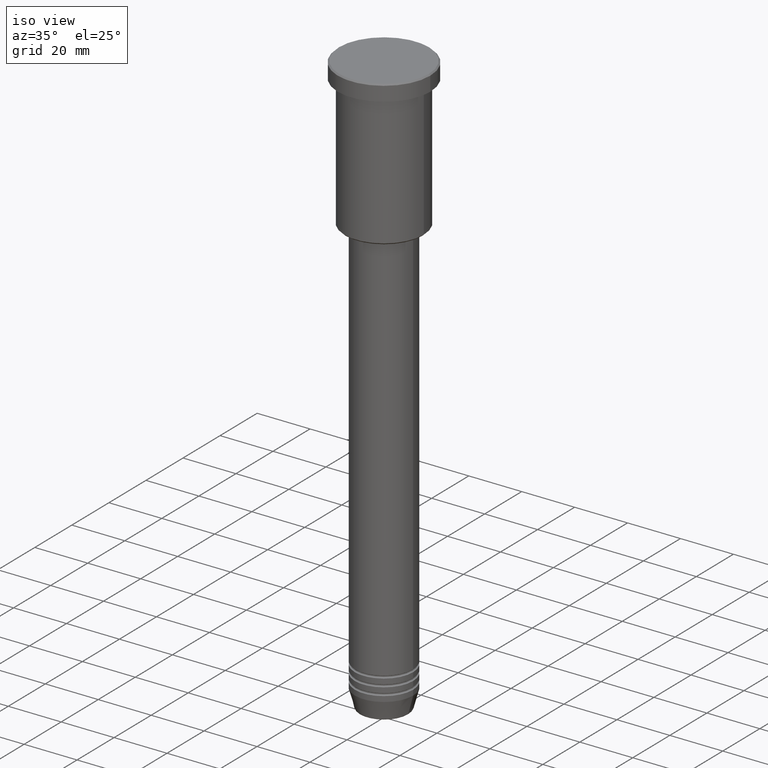
[diagram: clean part render]
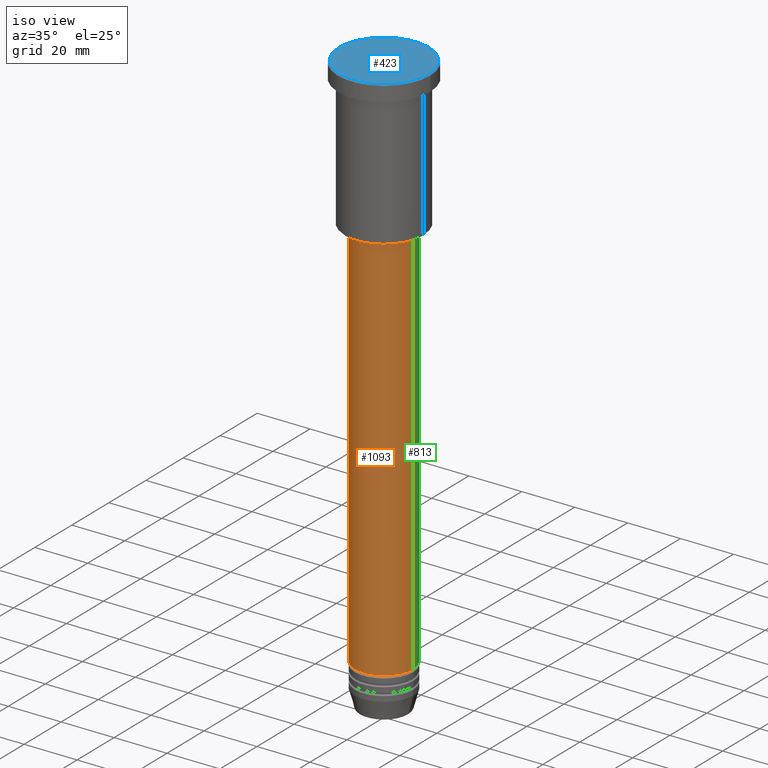
[diagram: same view with three faces highlighted in distinct colors, each labeled with its STEP entity id]
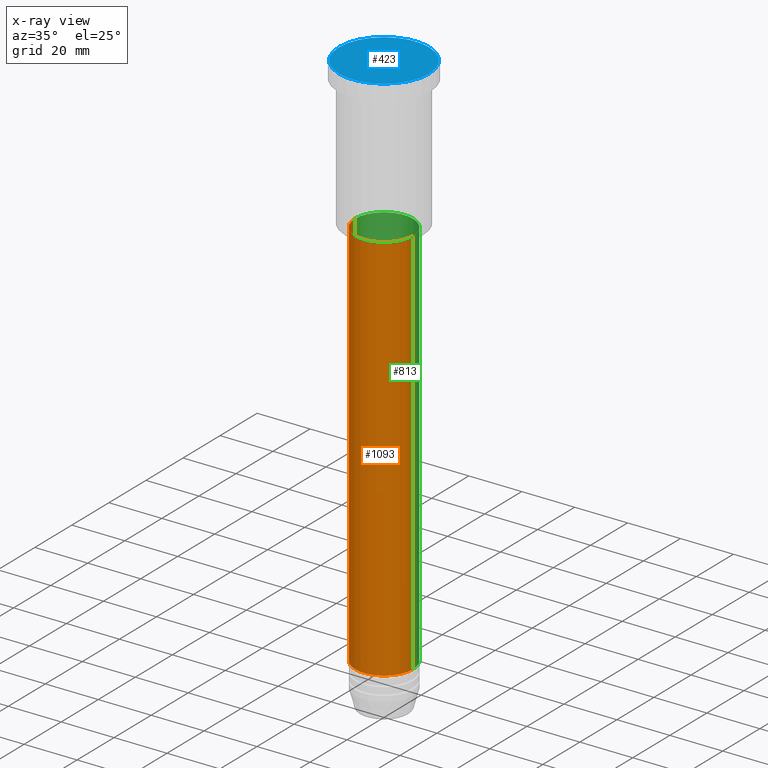
[diagram: x-ray of the same camera — body ghosted, the three highlighted faces saturated]
A machine part, iso view with three faces highlighted in distinct colors.
The next image is the same camera in x-ray (body ghosted, the three faces saturated) — at least one of them is partly hidden behind the body in this view.
Their STEP definitions:

[orange] entity #1093 — the highlighted cylindrical surface (edge-blend (fillet) strip) has radius 11 mm, axis along (-0, -0, 1).
#42 = CARTESIAN_POINT ( 'NONE',  ( -11.00000000000000000, 1.347111479062088405E-15, 0.000000000000000000 ) ) ;
#51 = VERTEX_POINT ( 'NONE', #198 ) ;
#54 = EDGE_CURVE ( 'NONE', #1071, #51, #294, .T. ) ;
#69 = DIRECTION ( 'NONE',  ( 1.000000000000000000, 0.000000000000000000, 0.000000000000000000 ) ) ;
#88 = CIRCLE ( 'NONE', #900, 11.00000000000000000 ) ;
#105 = EDGE_CURVE ( 'NONE', #1071, #1110, #528, .T. ) ;
#114 = FACE_OUTER_BOUND ( 'NONE', #158, .T. ) ;
#124 = CARTESIAN_POINT ( 'NONE',  ( 0.000000000000000000, 0.000000000000000000, 0.000000000000000000 ) ) ;
#132 = DIRECTION ( 'NONE',  ( -0.000000000000000000, -0.000000000000000000, 1.000000000000000000 ) ) ;
#158 = EDGE_LOOP ( 'NONE', ( #1172, #832, #1156, #695 ) ) ;
#198 = CARTESIAN_POINT ( 'NONE',  ( -11.00000000000000000, 1.347111479062088405E-15, -57.00000000000000000 ) ) ;
#235 = CARTESIAN_POINT ( 'NONE',  ( 11.00000000000000000, 0.000000000000000000, 0.000000000000000000 ) ) ;
#294 = LINE ( 'NONE', #42, #723 ) ;
#303 = DIRECTION ( 'NONE',  ( -0.000000000000000000, -0.000000000000000000, 1.000000000000000000 ) ) ;
#335 = DIRECTION ( 'NONE',  ( 1.000000000000000000, 0.000000000000000000, 0.000000000000000000 ) ) ;
#338 = DIRECTION ( 'NONE',  ( -0.000000000000000000, -0.000000000000000000, 1.000000000000000000 ) ) ;
#393 = DIRECTION ( 'NONE',  ( 1.000000000000000000, 0.000000000000000000, 0.000000000000000000 ) ) ;
#406 = CARTESIAN_POINT ( 'NONE',  ( 0.000000000000000000, 0.000000000000000000, -57.00000000000000000 ) ) ;
#486 = CYLINDRICAL_SURFACE ( 'NONE', #784, 11.00000000000000000 ) ;
#528 = CIRCLE ( 'NONE', #951, 11.00000000000000000 ) ;
#607 = EDGE_CURVE ( 'NONE', #1110, #691, #1115, .T. ) ;
#691 = VERTEX_POINT ( 'NONE', #798 ) ;
#695 = ORIENTED_EDGE ( 'NONE', *, *, #978, .F. ) ;
#714 = CARTESIAN_POINT ( 'NONE',  ( 11.00000000000000000, 0.000000000000000000, -205.0000000000000000 ) ) ;
#723 = VECTOR ( 'NONE', #132, 1000.000000000000000 ) ;
#784 = AXIS2_PLACEMENT_3D ( 'NONE', #124, #338, #69 ) ;
#798 = CARTESIAN_POINT ( 'NONE',  ( 11.00000000000000000, 0.000000000000000000, -57.00000000000000000 ) ) ;
#832 = ORIENTED_EDGE ( 'NONE', *, *, #105, .T. ) ;
#850 = CARTESIAN_POINT ( 'NONE',  ( -11.00000000000000000, 1.347111479062088405E-15, -205.0000000000000000 ) ) ;
#867 = DIRECTION ( 'NONE',  ( -0.000000000000000000, -0.000000000000000000, 1.000000000000000000 ) ) ;
#900 = AXIS2_PLACEMENT_3D ( 'NONE', #406, #867, #393 ) ;
#951 = AXIS2_PLACEMENT_3D ( 'NONE', #1130, #1140, #335 ) ;
#954 = VECTOR ( 'NONE', #303, 1000.000000000000000 ) ;
#978 = EDGE_CURVE ( 'NONE', #51, #691, #88, .T. ) ;
#1071 = VERTEX_POINT ( 'NONE', #850 ) ;
#1093 = ADVANCED_FACE ( 'NONE', ( #114 ), #486, .T. ) ;
#1110 = VERTEX_POINT ( 'NONE', #714 ) ;
#1115 = LINE ( 'NONE', #235, #954 ) ;
#1130 = CARTESIAN_POINT ( 'NONE',  ( 0.000000000000000000, 0.000000000000000000, -205.0000000000000000 ) ) ;
#1140 = DIRECTION ( 'NONE',  ( -0.000000000000000000, -0.000000000000000000, 1.000000000000000000 ) ) ;
#1156 = ORIENTED_EDGE ( 'NONE', *, *, #607, .T. ) ;
#1172 = ORIENTED_EDGE ( 'NONE', *, *, #54, .F. ) ;

[blue] entity #423 — the highlighted planar face has unit normal (0, -0, 1).
#23 = DIRECTION ( 'NONE',  ( 1.000000000000000000, 0.000000000000000000, 0.000000000000000000 ) ) ;
#112 = FACE_OUTER_BOUND ( 'NONE', #598, .T. ) ;
#162 = DIRECTION ( 'NONE',  ( 1.000000000000000000, 0.000000000000000000, 0.000000000000000000 ) ) ;
#176 = ORIENTED_EDGE ( 'NONE', *, *, #1109, .T. ) ;
#202 = DIRECTION ( 'NONE',  ( 1.000000000000000000, 0.000000000000000000, 0.000000000000000000 ) ) ;
#226 = CIRCLE ( 'NONE', #376, 16.99999999999998579 ) ;
#371 = PLANE ( 'NONE',  #915 ) ;
#376 = AXIS2_PLACEMENT_3D ( 'NONE', #772, #1129, #23 ) ;
#423 = ADVANCED_FACE ( 'NONE', ( #112 ), #371, .T. ) ;
#432 = VERTEX_POINT ( 'NONE', #739 ) ;
#556 = VERTEX_POINT ( 'NONE', #1049 ) ;
#598 = EDGE_LOOP ( 'NONE', ( #748, #176 ) ) ;
#624 = EDGE_CURVE ( 'NONE', #556, #432, #226, .T. ) ;
#626 = DIRECTION ( 'NONE',  ( -0.000000000000000000, -0.000000000000000000, 1.000000000000000000 ) ) ;
#658 = CARTESIAN_POINT ( 'NONE',  ( 0.000000000000000000, 0.000000000000000000, 0.000000000000000000 ) ) ;
#718 = CARTESIAN_POINT ( 'NONE',  ( 0.000000000000000000, 0.000000000000000000, 0.000000000000000000 ) ) ;
#739 = CARTESIAN_POINT ( 'NONE',  ( 16.99999999999998579, 2.112515728529183278E-15, 0.000000000000000000 ) ) ;
#748 = ORIENTED_EDGE ( 'NONE', *, *, #624, .T. ) ;
#772 = CARTESIAN_POINT ( 'NONE',  ( 0.000000000000000000, 0.000000000000000000, 0.000000000000000000 ) ) ;
#915 = AXIS2_PLACEMENT_3D ( 'NONE', #658, #1014, #202 ) ;
#1009 = CIRCLE ( 'NONE', #1060, 16.99999999999998579 ) ;
#1014 = DIRECTION ( 'NONE',  ( 0.000000000000000000, -0.000000000000000000, 1.000000000000000000 ) ) ;
#1049 = CARTESIAN_POINT ( 'NONE',  ( -16.99999999999998579, 0.000000000000000000, 0.000000000000000000 ) ) ;
#1060 = AXIS2_PLACEMENT_3D ( 'NONE', #718, #626, #162 ) ;
#1109 = EDGE_CURVE ( 'NONE', #432, #556, #1009, .T. ) ;
#1129 = DIRECTION ( 'NONE',  ( -0.000000000000000000, -0.000000000000000000, 1.000000000000000000 ) ) ;

[green] entity #813 — the highlighted cylindrical surface (edge-blend (fillet) strip) has radius 11 mm, axis along (-0, -0, 1).
#4 = DIRECTION ( 'NONE',  ( 1.000000000000000000, 0.000000000000000000, 0.000000000000000000 ) ) ;
#30 = CARTESIAN_POINT ( 'NONE',  ( 0.000000000000000000, 0.000000000000000000, -57.00000000000000000 ) ) ;
#42 = CARTESIAN_POINT ( 'NONE',  ( -11.00000000000000000, 1.347111479062088405E-15, 0.000000000000000000 ) ) ;
#51 = VERTEX_POINT ( 'NONE', #198 ) ;
#54 = EDGE_CURVE ( 'NONE', #1071, #51, #294, .T. ) ;
#74 = ORIENTED_EDGE ( 'NONE', *, *, #607, .F. ) ;
#110 = FACE_OUTER_BOUND ( 'NONE', #466, .T. ) ;
#111 = AXIS2_PLACEMENT_3D ( 'NONE', #749, #835, #4 ) ;
#132 = DIRECTION ( 'NONE',  ( -0.000000000000000000, -0.000000000000000000, 1.000000000000000000 ) ) ;
#154 = ORIENTED_EDGE ( 'NONE', *, *, #54, .T. ) ;
#198 = CARTESIAN_POINT ( 'NONE',  ( -11.00000000000000000, 1.347111479062088405E-15, -57.00000000000000000 ) ) ;
#235 = CARTESIAN_POINT ( 'NONE',  ( 11.00000000000000000, 0.000000000000000000, 0.000000000000000000 ) ) ;
#250 = AXIS2_PLACEMENT_3D ( 'NONE', #30, #689, #490 ) ;
#294 = LINE ( 'NONE', #42, #723 ) ;
#303 = DIRECTION ( 'NONE',  ( -0.000000000000000000, -0.000000000000000000, 1.000000000000000000 ) ) ;
#466 = EDGE_LOOP ( 'NONE', ( #586, #154, #480, #74 ) ) ;
#480 = ORIENTED_EDGE ( 'NONE', *, *, #972, .F. ) ;
#490 = DIRECTION ( 'NONE',  ( 1.000000000000000000, 0.000000000000000000, 0.000000000000000000 ) ) ;
#567 = AXIS2_PLACEMENT_3D ( 'NONE', #1013, #737, #817 ) ;
#586 = ORIENTED_EDGE ( 'NONE', *, *, #893, .T. ) ;
#607 = EDGE_CURVE ( 'NONE', #1110, #691, #1115, .T. ) ;
#689 = DIRECTION ( 'NONE',  ( -0.000000000000000000, -0.000000000000000000, 1.000000000000000000 ) ) ;
#691 = VERTEX_POINT ( 'NONE', #798 ) ;
#714 = CARTESIAN_POINT ( 'NONE',  ( 11.00000000000000000, 0.000000000000000000, -205.0000000000000000 ) ) ;
#723 = VECTOR ( 'NONE', #132, 1000.000000000000000 ) ;
#737 = DIRECTION ( 'NONE',  ( -0.000000000000000000, -0.000000000000000000, 1.000000000000000000 ) ) ;
#749 = CARTESIAN_POINT ( 'NONE',  ( 0.000000000000000000, 0.000000000000000000, -205.0000000000000000 ) ) ;
#798 = CARTESIAN_POINT ( 'NONE',  ( 11.00000000000000000, 0.000000000000000000, -57.00000000000000000 ) ) ;
#813 = ADVANCED_FACE ( 'NONE', ( #110 ), #1102, .T. ) ;
#817 = DIRECTION ( 'NONE',  ( 1.000000000000000000, 0.000000000000000000, 0.000000000000000000 ) ) ;
#835 = DIRECTION ( 'NONE',  ( -0.000000000000000000, -0.000000000000000000, 1.000000000000000000 ) ) ;
#850 = CARTESIAN_POINT ( 'NONE',  ( -11.00000000000000000, 1.347111479062088405E-15, -205.0000000000000000 ) ) ;
#893 = EDGE_CURVE ( 'NONE', #1110, #1071, #1056, .T. ) ;
#937 = CIRCLE ( 'NONE', #250, 11.00000000000000000 ) ;
#954 = VECTOR ( 'NONE', #303, 1000.000000000000000 ) ;
#972 = EDGE_CURVE ( 'NONE', #691, #51, #937, .T. ) ;
#1013 = CARTESIAN_POINT ( 'NONE',  ( 0.000000000000000000, 0.000000000000000000, 0.000000000000000000 ) ) ;
#1056 = CIRCLE ( 'NONE', #111, 11.00000000000000000 ) ;
#1071 = VERTEX_POINT ( 'NONE', #850 ) ;
#1102 = CYLINDRICAL_SURFACE ( 'NONE', #567, 11.00000000000000000 ) ;
#1110 = VERTEX_POINT ( 'NONE', #714 ) ;
#1115 = LINE ( 'NONE', #235, #954 ) ;